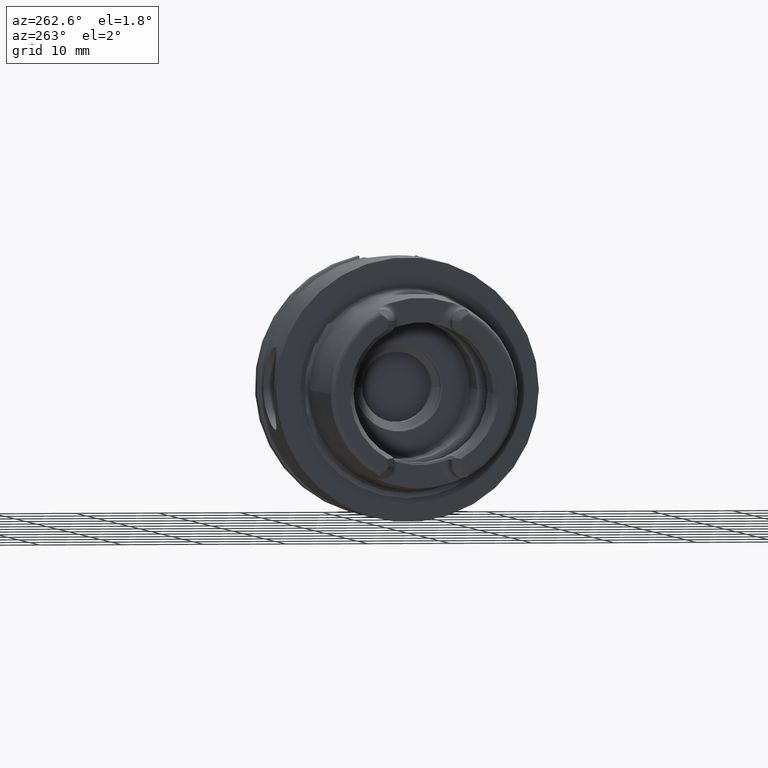
[diagram: clean part render]
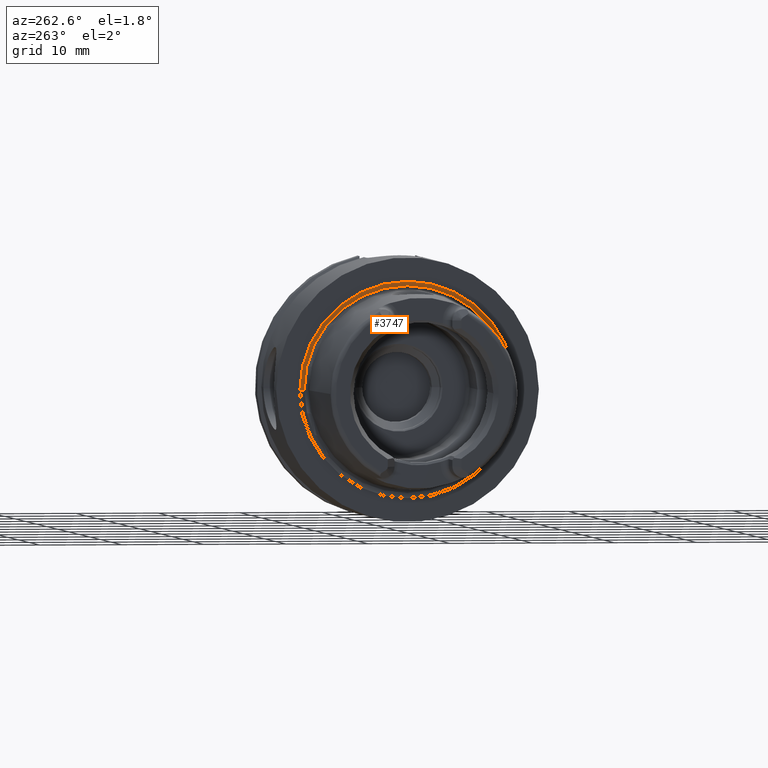
[diagram: same view with one face highlighted and labeled with its STEP entity id]
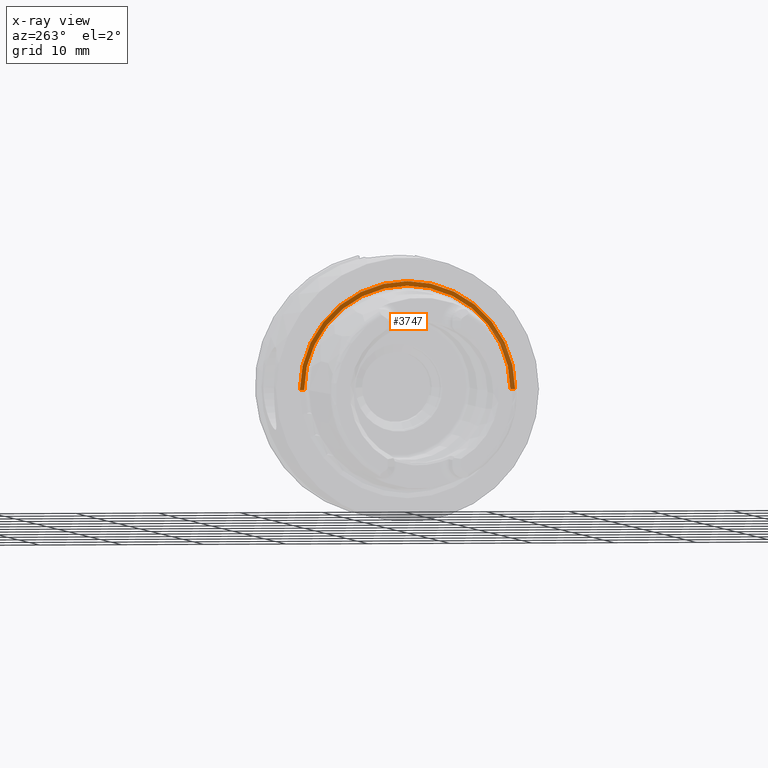
[diagram: x-ray of the same camera — body ghosted, the highlighted face saturated]
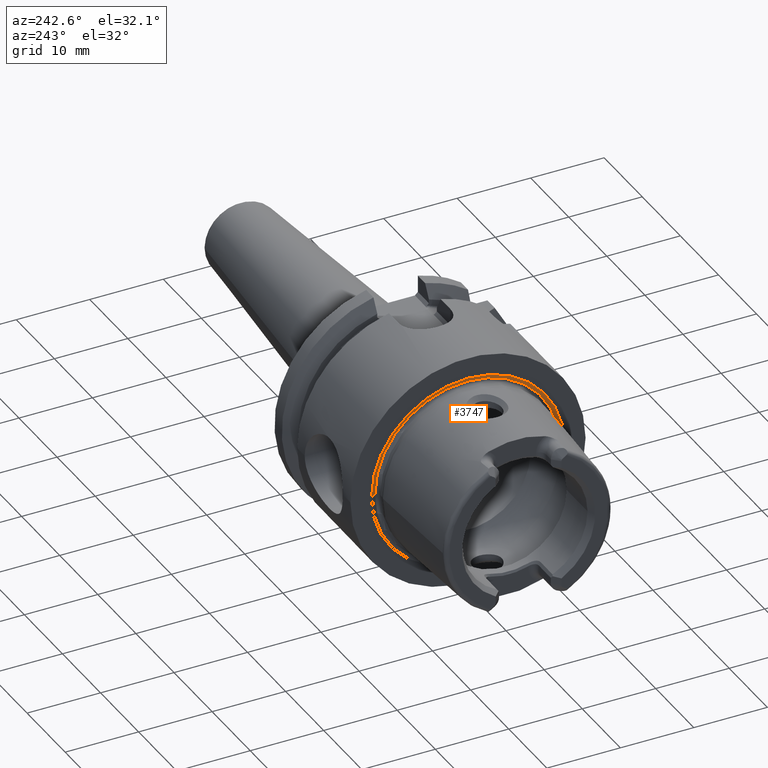
[diagram: same view with one face highlighted and labeled with its STEP entity id]
A machine part, auxiliary view. The second image highlights one B-rep face of the part: STEP entity #3747.
The next image is the same camera in x-ray: the body ghosted, the highlighted face saturated — about 17% of this face is hidden behind the body in this view.
A second angle (auxiliary view) of the same face is appended — the face is thin or edge-on in the first view.
In plain terms, the highlighted conical surface has half-angle 68.5 deg.
Its self-contained STEP definition (entity closure, byte-faithful):
#624=CARTESIAN_POINT('',(2.179898639175E-1,0.E0,0.E0));
#625=DIRECTION('',(-1.E0,0.E0,0.E0));
#626=DIRECTION('',(0.E0,-1.E0,0.E0));
#627=AXIS2_PLACEMENT_3D('',#624,#625,#626);
#644=DIRECTION('',(3.665012267243E-1,9.304175679820E-1,0.E0));
#645=VECTOR('',#644,5.947861781141E-1);
#646=CARTESIAN_POINT('',(0.E0,-1.311372602740E1,0.E0));
#647=LINE('',#646,#645);
#648=DIRECTION('',(3.665012267243E-1,-9.304175679820E-1,0.E0));
#649=VECTOR('',#648,5.947861781141E-1);
#650=CARTESIAN_POINT('',(0.E0,1.311372602740E1,0.E0));
#651=LINE('',#650,#649);
#662=CARTESIAN_POINT('',(0.E0,0.E0,0.E0));
#663=DIRECTION('',(-1.E0,0.E0,0.E0));
#664=DIRECTION('',(0.E0,-1.E0,0.E0));
#665=AXIS2_PLACEMENT_3D('',#662,#663,#664);
#2590=CARTESIAN_POINT('',(2.179898639175E-1,-1.256032651809E1,0.E0));
#2592=VERTEX_POINT('',#2590);
#2598=CARTESIAN_POINT('',(2.179898639175E-1,1.256032651809E1,0.E0));
#2600=VERTEX_POINT('',#2598);
#2614=CARTESIAN_POINT('',(0.E0,-1.311372602740E1,0.E0));
#2615=VERTEX_POINT('',#2614);
#2616=CARTESIAN_POINT('',(0.E0,1.311372602740E1,0.E0));
#2617=VERTEX_POINT('',#2616);
#3735=CARTESIAN_POINT('',(1.089949319587E-1,0.E0,0.E0));
#3736=DIRECTION('',(-1.E0,0.E0,0.E0));
#3737=DIRECTION('',(0.E0,1.E0,0.E0));
#3738=AXIS2_PLACEMENT_3D('',#3735,#3736,#3737);
#3739=CONICAL_SURFACE('',#3738,1.283702627274E1,6.85E1);
#3740=ORIENTED_EDGE('',*,*,#3725,.T.);
#3741=ORIENTED_EDGE('',*,*,#3702,.T.);
#3742=ORIENTED_EDGE('',*,*,#3729,.F.);
#3744=ORIENTED_EDGE('',*,*,#3743,.F.);
#3745=EDGE_LOOP('',(#3740,#3741,#3742,#3744));
#3746=FACE_OUTER_BOUND('',#3745,.F.);
#3747=ADVANCED_FACE('',(#3746),#3739,.F.);
#628=CIRCLE('',#627,1.256032651809E1);
#666=CIRCLE('',#665,1.311372602740E1);
#3702=EDGE_CURVE('',#2592,#2600,#628,.T.);
#3725=EDGE_CURVE('',#2615,#2592,#647,.T.);
#3729=EDGE_CURVE('',#2617,#2600,#651,.T.);
#3743=EDGE_CURVE('',#2615,#2617,#666,.T.);